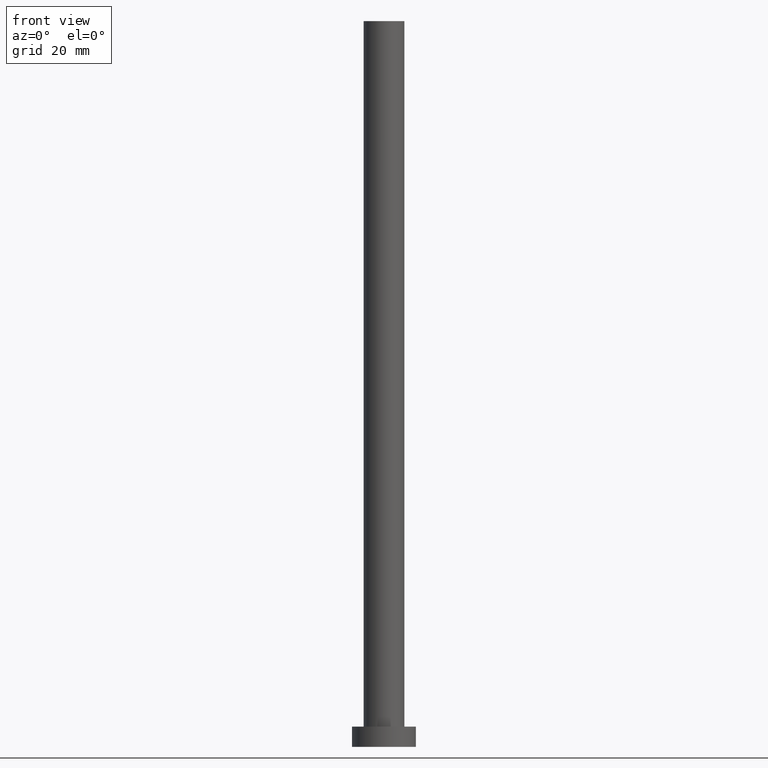
[diagram: clean part render]
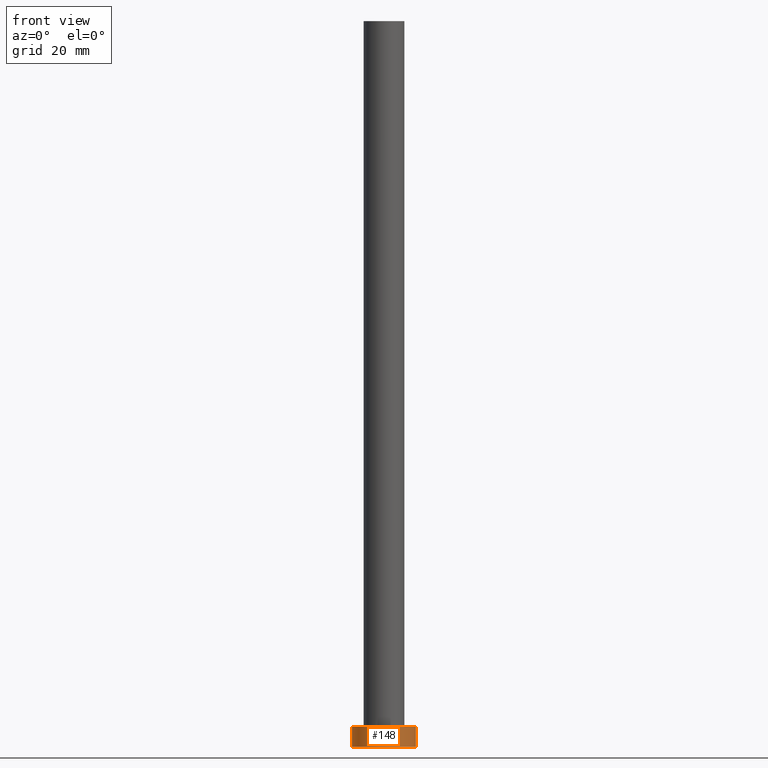
[diagram: same view with one face highlighted and labeled with its STEP entity id]
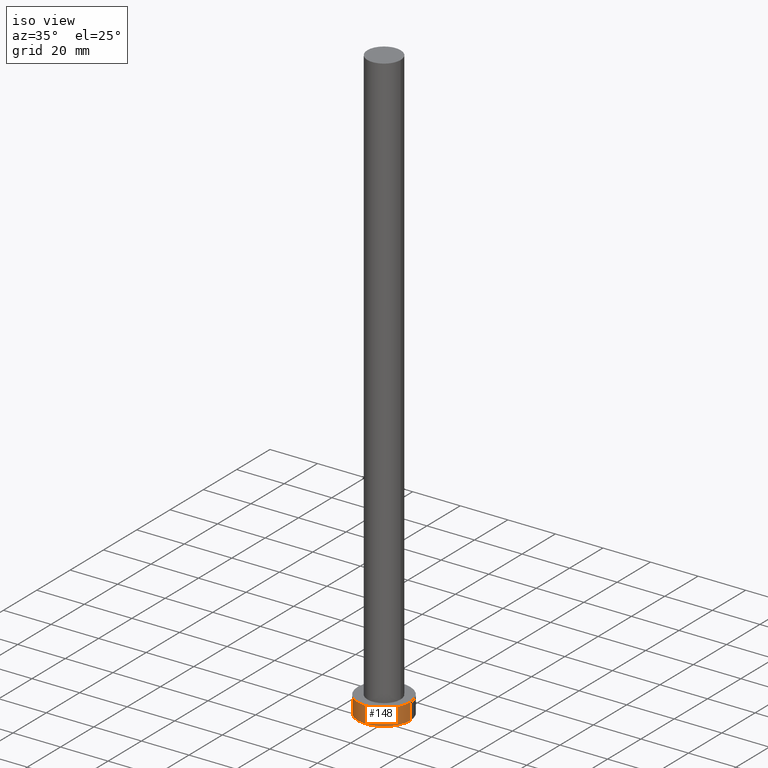
[diagram: same view with one face highlighted and labeled with its STEP entity id]
A machine part, front view. The second image highlights one B-rep face of the part: STEP entity #148.
A second angle (iso view) of the same face is appended — the face is thin or edge-on in the first view.
In plain terms, the highlighted cylindrical surface (edge-blend (fillet) strip) has radius 11 mm, axis along (-0, -0, -1).
Its self-contained STEP definition (entity closure, byte-faithful):
#6 = AXIS2_PLACEMENT_3D ( 'NONE', #189, #82, #33 ) ;
#9 = ORIENTED_EDGE ( 'NONE', *, *, #23, .T. ) ;
#15 = DIRECTION ( 'NONE',  ( -1.000000000000000000, 0.000000000000000000, 0.000000000000000000 ) ) ;
#23 = EDGE_CURVE ( 'NONE', #92, #98, #166, .T. ) ;
#30 = ORIENTED_EDGE ( 'NONE', *, *, #173, .F. ) ;
#31 = LINE ( 'NONE', #52, #213 ) ;
#33 = DIRECTION ( 'NONE',  ( 1.000000000000000000, 0.000000000000000000, 0.000000000000000000 ) ) ;
#34 = VECTOR ( 'NONE', #141, 1000.000000000000000 ) ;
#37 = DIRECTION ( 'NONE',  ( 1.000000000000000000, 0.000000000000000000, 0.000000000000000000 ) ) ;
#38 = EDGE_CURVE ( 'NONE', #181, #98, #31, .T. ) ;
#46 = CARTESIAN_POINT ( 'NONE',  ( -11.00000000000000000, 0.000000000000000000, 0.000000000000000000 ) ) ;
#49 = LINE ( 'NONE', #225, #34 ) ;
#50 = DIRECTION ( 'NONE',  ( -0.000000000000000000, -0.000000000000000000, -1.000000000000000000 ) ) ;
#52 = CARTESIAN_POINT ( 'NONE',  ( 11.00000000000000000, 1.347111479062088405E-15, 7.000000000000000000 ) ) ;
#58 = CARTESIAN_POINT ( 'NONE',  ( -11.00000000000000000, 0.000000000000000000, 7.000000000000000000 ) ) ;
#59 = ORIENTED_EDGE ( 'NONE', *, *, #38, .F. ) ;
#69 = AXIS2_PLACEMENT_3D ( 'NONE', #145, #163, #37 ) ;
#82 = DIRECTION ( 'NONE',  ( 0.000000000000000000, 0.000000000000000000, 1.000000000000000000 ) ) ;
#92 = VERTEX_POINT ( 'NONE', #46 ) ;
#98 = VERTEX_POINT ( 'NONE', #143 ) ;
#122 = CARTESIAN_POINT ( 'NONE',  ( 0.000000000000000000, 0.000000000000000000, 7.000000000000000000 ) ) ;
#138 = EDGE_CURVE ( 'NONE', #244, #92, #49, .T. ) ;
#141 = DIRECTION ( 'NONE',  ( -0.000000000000000000, -0.000000000000000000, -1.000000000000000000 ) ) ;
#143 = CARTESIAN_POINT ( 'NONE',  ( 11.00000000000000000, 1.347111479062088405E-15, 0.000000000000000000 ) ) ;
#145 = CARTESIAN_POINT ( 'NONE',  ( 0.000000000000000000, 0.000000000000000000, 0.000000000000000000 ) ) ;
#148 = ADVANCED_FACE ( 'NONE', ( #185 ), #227, .T. ) ;
#163 = DIRECTION ( 'NONE',  ( 0.000000000000000000, 0.000000000000000000, 1.000000000000000000 ) ) ;
#166 = CIRCLE ( 'NONE', #69, 11.00000000000000000 ) ;
#173 = EDGE_CURVE ( 'NONE', #244, #181, #223, .T. ) ;
#181 = VERTEX_POINT ( 'NONE', #194 ) ;
#185 = FACE_OUTER_BOUND ( 'NONE', #201, .T. ) ;
#189 = CARTESIAN_POINT ( 'NONE',  ( 0.000000000000000000, 0.000000000000000000, 7.000000000000000000 ) ) ;
#191 = AXIS2_PLACEMENT_3D ( 'NONE', #122, #205, #15 ) ;
#194 = CARTESIAN_POINT ( 'NONE',  ( 11.00000000000000000, 1.347111479062088405E-15, 7.000000000000000000 ) ) ;
#198 = ORIENTED_EDGE ( 'NONE', *, *, #138, .T. ) ;
#201 = EDGE_LOOP ( 'NONE', ( #59, #30, #198, #9 ) ) ;
#205 = DIRECTION ( 'NONE',  ( -0.000000000000000000, -0.000000000000000000, -1.000000000000000000 ) ) ;
#213 = VECTOR ( 'NONE', #50, 1000.000000000000000 ) ;
#223 = CIRCLE ( 'NONE', #6, 11.00000000000000000 ) ;
#225 = CARTESIAN_POINT ( 'NONE',  ( -11.00000000000000000, 0.000000000000000000, 7.000000000000000000 ) ) ;
#227 = CYLINDRICAL_SURFACE ( 'NONE', #191, 11.00000000000000000 ) ;
#244 = VERTEX_POINT ( 'NONE', #58 ) ;